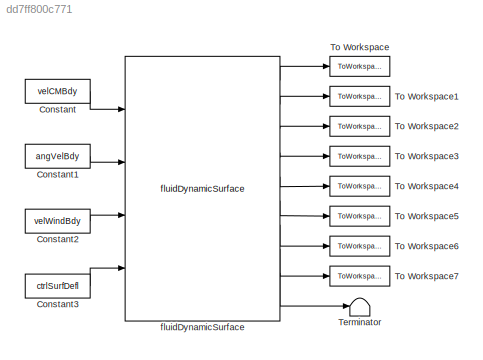
MODEL slx_dd7ff800c771
KIND model
CONFIG AbsTol = auto
CONFIG EnableMultiTasking = off
CONFIG FixedStep = auto
CONFIG MaxStep = auto
CONFIG MinStep = auto
CONFIG RelTol = 1e-3
CONFIG SampleTimeConstraint = Unconstrained
CONFIG SolverName = VariableStepAuto
CONFIG StartTime = 0.0
CONFIG StopTime = 0
BLOCK [Constant] Constant
  Value = velCMBdy
BLOCK [Constant] Constant1
  Value = angVelBdy
BLOCK [Constant] Constant2
  Value = velWindBdy
BLOCK [Constant] Constant3
  Value = ctrlSurfDefl
BLOCK [Terminator] Terminator
BLOCK [ToWorkspace] To Workspace
  FixptAsFi = on
  MaxDataPoints = inf
  Ports = [1]
  SampleTime = -1
  SaveFormat = Timeseries
  VariableName = FBdy
BLOCK [ToWorkspace] To Workspace1
  FixptAsFi = on
  MaxDataPoints = inf
  Ports = [1]
  SampleTime = -1
  SaveFormat = Timeseries
  VariableName = MBdy
BLOCK [ToWorkspace] To Workspace2
  FixptAsFi = on
  MaxDataPoints = inf
  Ports = [1]
  SampleTime = -1
  SaveFormat = Timeseries
  VariableName = FLift
BLOCK [ToWorkspace] To Workspace3
  FixptAsFi = on
  MaxDataPoints = inf
  Ports = [1]
  SampleTime = -1
  SaveFormat = Timeseries
  VariableName = FDrag
BLOCK [ToWorkspace] To Workspace4
  FixptAsFi = on
  MaxDataPoints = inf
  Ports = [1]
  SampleTime = -1
  SaveFormat = Timeseries
  VariableName = dynPress
BLOCK [ToWorkspace] To Workspace5
  FixptAsFi = on
  MaxDataPoints = inf
  Ports = [1]
  SampleTime = -1
  SaveFormat = Timeseries
  VariableName = CL
BLOCK [ToWorkspace] To Workspace6
  FixptAsFi = on
  MaxDataPoints = inf
  Ports = [1]
  SampleTime = -1
  SaveFormat = Timeseries
  VariableName = CD
BLOCK [ToWorkspace] To Workspace7
  FixptAsFi = on
  MaxDataPoints = inf
  Ports = [1]
  SampleTime = -1
  SaveFormat = Timeseries
  VariableName = alphaLocal
BLOCK [Reference] fluidDynamicSurface  REF=fluidDynamicSurface_cl/fluidDynamicSurface
  Ports = [4, 10]
  SourceBlock = fluidDynamicSurface_cl/fluidDynamicSurface
LINE Constant1:1 -> fluidDynamicSurface:2
LINE Constant2:1 -> fluidDynamicSurface:3
LINE Constant3:1 -> fluidDynamicSurface:4
LINE Constant:1 -> fluidDynamicSurface:1
LINE fluidDynamicSurface:1 -> To Workspace:1
LINE fluidDynamicSurface:2 -> To Workspace1:1
LINE fluidDynamicSurface:3 -> To Workspace2:1
LINE fluidDynamicSurface:4 -> To Workspace3:1
LINE fluidDynamicSurface:5 -> To Workspace4:1
LINE fluidDynamicSurface:6 -> To Workspace5:1
LINE fluidDynamicSurface:7 -> To Workspace6:1
LINE fluidDynamicSurface:8 -> To Workspace7:1
LINE fluidDynamicSurface:9 -> Terminator:1
